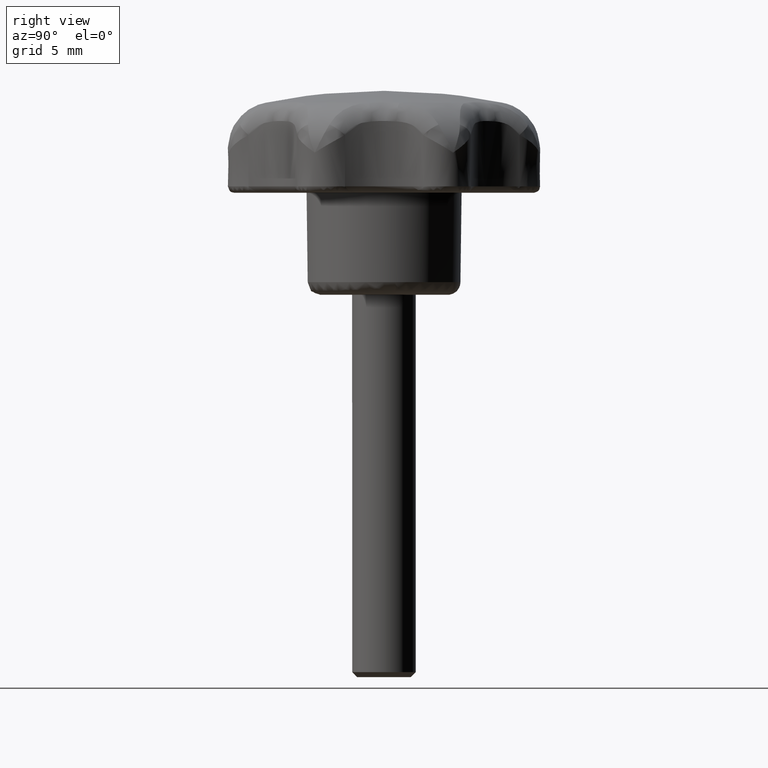
[diagram: clean part render]
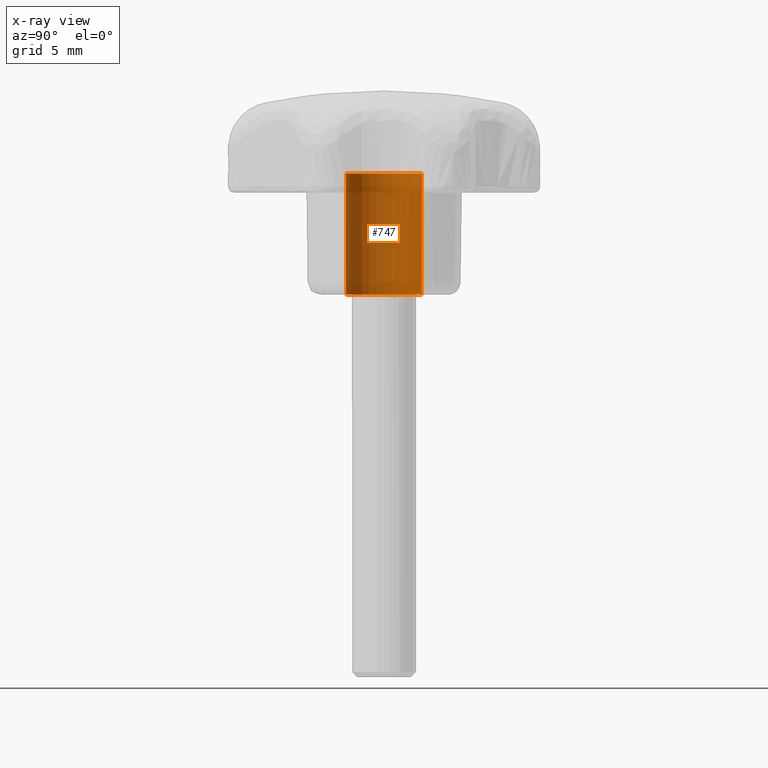
[diagram: x-ray — body ghosted, one internal face saturated and labeled with its STEP entity id]
A machine part, right view, then the same camera in x-ray: the body is ghosted and one INTERNAL B-rep face — a face not visible from any outside direction — is saturated and labeled: STEP entity #747.
In plain terms, the highlighted face is a freeform B-spline surface patch.
Its self-contained STEP definition (entity closure, byte-faithful):
#645=CARTESIAN_POINT('',(0.354102703970268,-2.979028579091000,1.737500000000054));
#646=CARTESIAN_POINT('',(0.268844185913926,-2.989162846345817,1.737500000000055));
#647=CARTESIAN_POINT('',(0.183145618604564,-2.994404395265600,1.737500000000054));
#648=CARTESIAN_POINT('',(-2.811258776661037,-3.177550013870171,1.737500000000054));
#649=CARTESIAN_POINT('',(-2.994404395265607,-0.183145618604571,1.737500000000054));
#650=CARTESIAN_POINT('',(-3.177550013870178,2.811258776661029,1.737500000000054));
#651=CARTESIAN_POINT('',(-0.183145618604578,2.994404395265600,1.737500000000054));
#652=CARTESIAN_POINT('',(0.354102703970268,-2.979028579091000,-8.243437499999899));
#653=CARTESIAN_POINT('',(0.268844185913926,-2.989162846345817,-8.243437499999899));
#654=CARTESIAN_POINT('',(0.183145618604564,-2.994404395265600,-8.243437499999899));
#655=CARTESIAN_POINT('',(-2.811258776661037,-3.177550013870171,-8.243437499999899));
#656=CARTESIAN_POINT('',(-2.994404395265607,-0.183145618604571,-8.243437499999899));
#657=CARTESIAN_POINT('',(-3.177550013870178,2.811258776661029,-8.243437499999899));
#658=CARTESIAN_POINT('',(-0.183145618604578,2.994404395265600,-8.243437499999899));
#666=(BOUNDED_SURFACE()B_SPLINE_SURFACE(2,1,((#645,#652),(#646,#653),(#647,#654),(#648,#655),(#649,#656),(#650,#657),(#651,#658)),.UNSPECIFIED.,.F.,.F.,.U.)B_SPLINE_SURFACE_WITH_KNOTS((3,2,2,3),(2,2),(0.0,0.198822509939086,5.169385258416226,10.139948006893370),(0.0,9.980937499999955),.UNSPECIFIED.)GEOMETRIC_REPRESENTATION_ITEM()RATIONAL_B_SPLINE_SURFACE(((0.977505800795127,0.977505800795127),(0.988284271247462,0.988284271247462),(1.0,1.0),(0.707106781186548,0.707106781186548),(1.0,1.0),(0.707106781186548,0.707106781186548),(1.0,1.0)))REPRESENTATION_ITEM('')SURFACE());
#667=CARTESIAN_POINT('',(0.354098840157889,-2.979029038358588,1.500000000000031));
#668=VERTEX_POINT('',#667);
#669=CARTESIAN_POINT('',(-3.000000000000007,0.0,1.500000000000055));
#670=VERTEX_POINT('',#669);
#671=CARTESIAN_POINT('',(0.354098840157889,-2.979029038358588,1.500000000000031));
#672=CARTESIAN_POINT('',(0.177670406626044,-3.000000000000000,1.500000000000056));
#673=CARTESIAN_POINT('',(-7.105427E-015,-3.0,1.500000000000055));
#674=CARTESIAN_POINT('',(-3.000000000000008,-3.0,1.500000000000055));
#675=CARTESIAN_POINT('',(-3.000000000000007,0.0,1.500000000000055));
#683=(BOUNDED_CURVE()B_SPLINE_CURVE(2,(#671,#672,#673,#674,#675),.UNSPECIFIED.,.F.,.U.)B_SPLINE_CURVE_WITH_KNOTS((3,2,3),(0.229562692713574,0.250000000000000,0.500000000000000),.UNSPECIFIED.)CURVE()GEOMETRIC_REPRESENTATION_ITEM()RATIONAL_B_SPLINE_CURVE((0.956027183825248,0.976056205139996,1.0,0.707106781186548,1.0))REPRESENTATION_ITEM(''));
#684=EDGE_CURVE('',#668,#670,#683,.T.);
#685=ORIENTED_EDGE('',*,*,#684,.F.);
#686=CARTESIAN_POINT('',(0.354098886623505,-2.979029032835566,-7.999999999999901));
#687=VERTEX_POINT('',#686);
#688=CARTESIAN_POINT('',(0.354098840157889,-2.979029038358588,1.500000000000031));
#689=CARTESIAN_POINT('',(0.354098886623505,-2.979029032835566,-7.999999999999901));
#690=QUASI_UNIFORM_CURVE('',1,(#688,#689),.UNSPECIFIED.,.F.,.U.);
#691=EDGE_CURVE('',#668,#687,#690,.T.);
#692=ORIENTED_EDGE('',*,*,#691,.T.);
#693=CARTESIAN_POINT('',(-3.000000000000007,0.0,-7.999999999999900));
#694=VERTEX_POINT('',#693);
#695=CARTESIAN_POINT('',(0.354098886623505,-2.979029032835566,-7.999999999999901));
#696=CARTESIAN_POINT('',(0.177670430104457,-3.000000000000000,-7.999999999999900));
#697=CARTESIAN_POINT('',(-7.105427E-015,-3.0,-7.999999999999900));
#698=CARTESIAN_POINT('',(-3.000000000000008,-3.0,-7.999999999999901));
#699=CARTESIAN_POINT('',(-3.000000000000007,0.0,-7.999999999999900));
#707=(BOUNDED_CURVE()B_SPLINE_CURVE(2,(#695,#696,#697,#698,#699),.UNSPECIFIED.,.F.,.U.)B_SPLINE_CURVE_WITH_KNOTS((3,2,3),(0.229562690077533,0.250000000000000,0.500000000000000),.UNSPECIFIED.)CURVE()GEOMETRIC_REPRESENTATION_ITEM()RATIONAL_B_SPLINE_CURVE((0.956027178658490,0.976056202051682,1.0,0.707106781186548,1.0))REPRESENTATION_ITEM(''));
#708=EDGE_CURVE('',#687,#694,#707,.T.);
#709=ORIENTED_EDGE('',*,*,#708,.T.);
#710=CARTESIAN_POINT('',(-0.183145618636239,2.994404395263664,-7.999999999999899));
#711=VERTEX_POINT('',#710);
#712=CARTESIAN_POINT('',(-3.000000000000007,0.0,-7.999999999999900));
#713=CARTESIAN_POINT('',(-3.000000000000007,2.822118200657285,-7.999999999999900));
#714=CARTESIAN_POINT('',(-0.183145618636239,2.994404395263664,-7.999999999999899));
#722=(BOUNDED_CURVE()B_SPLINE_CURVE(2,(#712,#713,#714),.UNSPECIFIED.,.F.,.U.)B_SPLINE_CURVE_WITH_KNOTS((3,3),(0.500000000000000,0.739332962238319),.UNSPECIFIED.)CURVE()GEOMETRIC_REPRESENTATION_ITEM()RATIONAL_B_SPLINE_CURVE((1.0,0.719603993287441,0.976072041665380))REPRESENTATION_ITEM(''));
#723=EDGE_CURVE('',#694,#711,#722,.T.);
#724=ORIENTED_EDGE('',*,*,#723,.T.);
#725=CARTESIAN_POINT('',(-0.183145618636239,2.994404395263664,1.500000000000056));
#726=VERTEX_POINT('',#725);
#727=CARTESIAN_POINT('',(-0.183145618636239,2.994404395263664,1.500000000000056));
#728=CARTESIAN_POINT('',(-0.183145618636239,2.994404395263664,-7.999999999999899));
#729=QUASI_UNIFORM_CURVE('',1,(#727,#728),.UNSPECIFIED.,.F.,.U.);
#730=EDGE_CURVE('',#726,#711,#729,.T.);
#731=ORIENTED_EDGE('',*,*,#730,.F.);
#732=CARTESIAN_POINT('',(-3.000000000000007,0.0,1.500000000000055));
#733=CARTESIAN_POINT('',(-3.000000000000007,2.822118200657285,1.500000000000054));
#734=CARTESIAN_POINT('',(-0.183145618636239,2.994404395263664,1.500000000000056));
#742=(BOUNDED_CURVE()B_SPLINE_CURVE(2,(#732,#733,#734),.UNSPECIFIED.,.F.,.U.)B_SPLINE_CURVE_WITH_KNOTS((3,3),(0.500000000000000,0.739332962238319),.UNSPECIFIED.)CURVE()GEOMETRIC_REPRESENTATION_ITEM()RATIONAL_B_SPLINE_CURVE((1.0,0.719603993287441,0.976072041665380))REPRESENTATION_ITEM(''));
#743=EDGE_CURVE('',#670,#726,#742,.T.);
#744=ORIENTED_EDGE('',*,*,#743,.F.);
#745=EDGE_LOOP('',(#685,#692,#709,#724,#731,#744));
#746=FACE_OUTER_BOUND('',#745,.T.);
#747=ADVANCED_FACE('',(#746),#666,.F.);